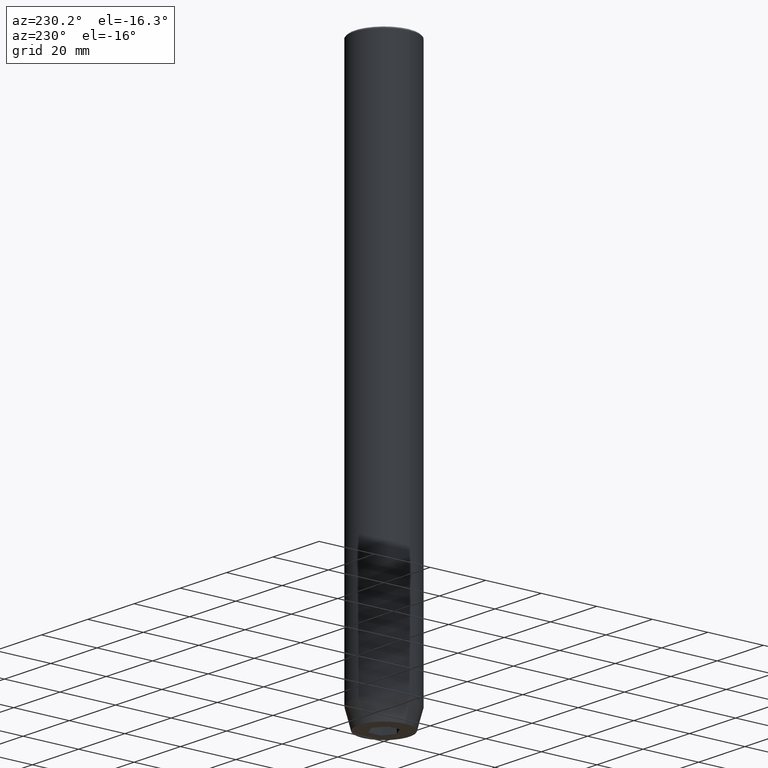
[diagram: clean part render]
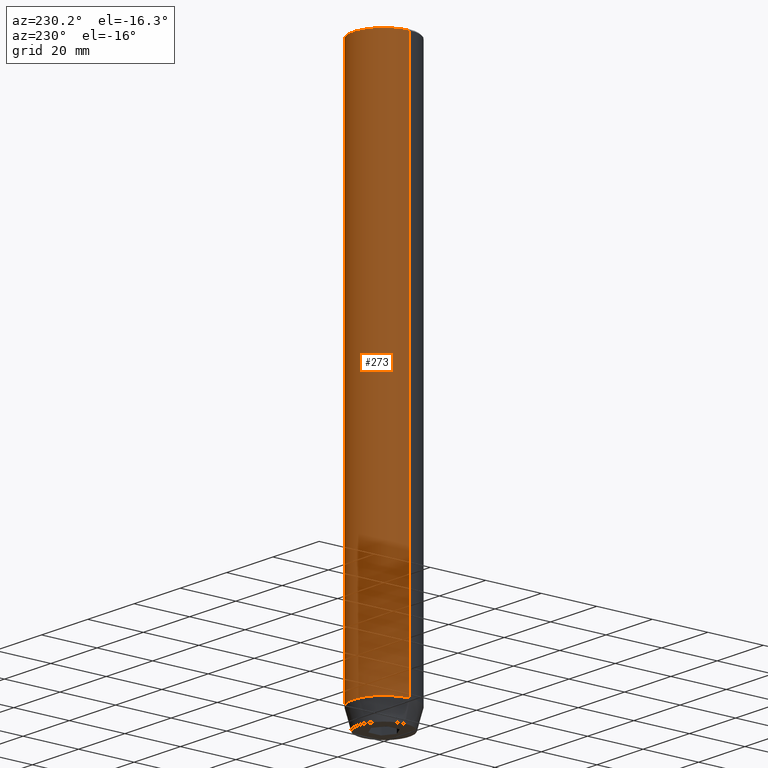
[diagram: same view with one face highlighted and labeled with its STEP entity id]
A machine part, auxiliary view. The second image highlights one B-rep face of the part: STEP entity #273.
In plain terms, the highlighted cylindrical surface (partial cylindrical patch) has radius 11 mm, axis along (-0, -0, 1).
Its self-contained STEP definition (entity closure, byte-faithful):
#55 = EDGE_LOOP ( 'NONE', ( #277, #351, #230, #326 ) ) ;
#96 = VERTEX_POINT ( 'NONE', #141 ) ;
#104 = CARTESIAN_POINT ( 'NONE',  ( -11.00000000000000000, 1.347111479062088405E-15, 0.000000000000000000 ) ) ;
#108 = VECTOR ( 'NONE', #259, 1000.000000000000000 ) ;
#137 = CARTESIAN_POINT ( 'NONE',  ( 0.000000000000000000, 0.000000000000000000, -193.0000000000000000 ) ) ;
#141 = CARTESIAN_POINT ( 'NONE',  ( 11.00000000000000000, 0.000000000000000000, -0.4999999999999726885 ) ) ;
#150 = CYLINDRICAL_SURFACE ( 'NONE', #508, 11.00000000000000000 ) ;
#162 = EDGE_CURVE ( 'NONE', #268, #96, #227, .T. ) ;
#206 = DIRECTION ( 'NONE',  ( -0.000000000000000000, -0.000000000000000000, 1.000000000000000000 ) ) ;
#227 = LINE ( 'NONE', #575, #108 ) ;
#230 = ORIENTED_EDGE ( 'NONE', *, *, #441, .T. ) ;
#259 = DIRECTION ( 'NONE',  ( -0.000000000000000000, -0.000000000000000000, 1.000000000000000000 ) ) ;
#268 = VERTEX_POINT ( 'NONE', #564 ) ;
#273 = ADVANCED_FACE ( 'NONE', ( #519 ), #150, .T. ) ;
#275 = DIRECTION ( 'NONE',  ( 1.000000000000000000, 0.000000000000000000, 0.000000000000000000 ) ) ;
#277 = ORIENTED_EDGE ( 'NONE', *, *, #439, .T. ) ;
#291 = CIRCLE ( 'NONE', #299, 11.00000000000000000 ) ;
#293 = EDGE_CURVE ( 'NONE', #381, #324, #479, .T. ) ;
#299 = AXIS2_PLACEMENT_3D ( 'NONE', #137, #535, #316 ) ;
#310 = CARTESIAN_POINT ( 'NONE',  ( 0.000000000000000000, 0.000000000000000000, -0.4999999999999726885 ) ) ;
#312 = CIRCLE ( 'NONE', #483, 11.00000000000000000 ) ;
#316 = DIRECTION ( 'NONE',  ( 1.000000000000000000, 0.000000000000000000, 0.000000000000000000 ) ) ;
#322 = CARTESIAN_POINT ( 'NONE',  ( -11.00000000000000000, 1.347111479062088405E-15, -0.4999999999999726885 ) ) ;
#324 = VERTEX_POINT ( 'NONE', #322 ) ;
#326 = ORIENTED_EDGE ( 'NONE', *, *, #162, .F. ) ;
#340 = CARTESIAN_POINT ( 'NONE',  ( 0.000000000000000000, 0.000000000000000000, 0.000000000000000000 ) ) ;
#351 = ORIENTED_EDGE ( 'NONE', *, *, #293, .T. ) ;
#381 = VERTEX_POINT ( 'NONE', #541 ) ;
#416 = VECTOR ( 'NONE', #206, 1000.000000000000000 ) ;
#439 = EDGE_CURVE ( 'NONE', #268, #381, #291, .T. ) ;
#441 = EDGE_CURVE ( 'NONE', #324, #96, #312, .T. ) ;
#479 = LINE ( 'NONE', #104, #416 ) ;
#483 = AXIS2_PLACEMENT_3D ( 'NONE', #310, #504, #275 ) ;
#504 = DIRECTION ( 'NONE',  ( 0.000000000000000000, 0.000000000000000000, -1.000000000000000000 ) ) ;
#508 = AXIS2_PLACEMENT_3D ( 'NONE', #340, #559, #516 ) ;
#516 = DIRECTION ( 'NONE',  ( 1.000000000000000000, 0.000000000000000000, 0.000000000000000000 ) ) ;
#519 = FACE_OUTER_BOUND ( 'NONE', #55, .T. ) ;
#535 = DIRECTION ( 'NONE',  ( -0.000000000000000000, -0.000000000000000000, 1.000000000000000000 ) ) ;
#541 = CARTESIAN_POINT ( 'NONE',  ( -11.00000000000000000, 1.347111479062088405E-15, -193.0000000000000000 ) ) ;
#559 = DIRECTION ( 'NONE',  ( -0.000000000000000000, -0.000000000000000000, 1.000000000000000000 ) ) ;
#564 = CARTESIAN_POINT ( 'NONE',  ( 11.00000000000000000, 0.000000000000000000, -193.0000000000000000 ) ) ;
#575 = CARTESIAN_POINT ( 'NONE',  ( 11.00000000000000000, 0.000000000000000000, 0.000000000000000000 ) ) ;